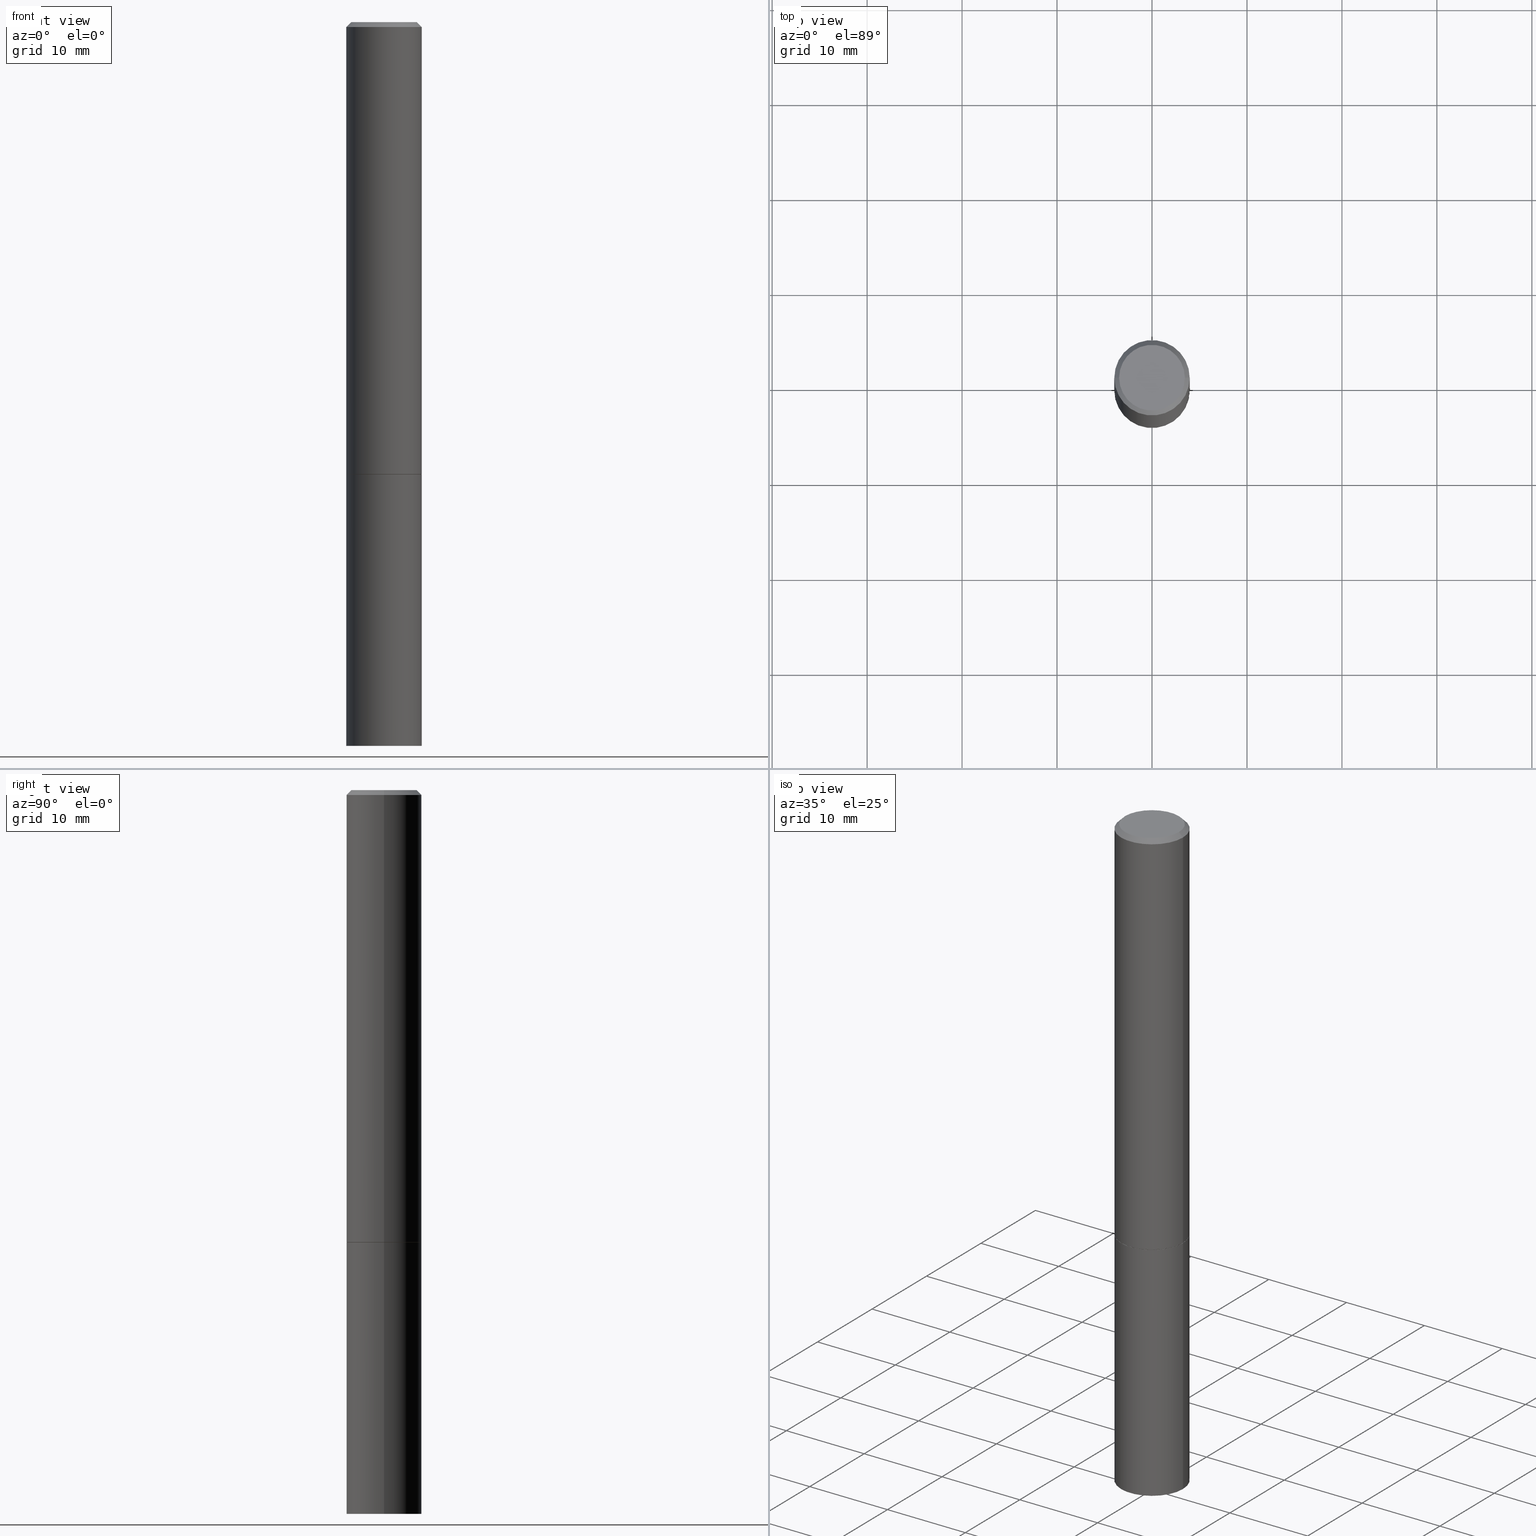
[diagram: canonical four-view strip — front | top / right | iso, engineering-drawing reading convention]
A machine part, canonical four-view strip (front | top / right | iso — engineering-drawing reading convention). The complete STEP part file that produces these views, byte-faithful:
ISO-10303-21;
HEADER;
FILE_DESCRIPTION (( 'STEP AP203' ),
    '1' );
FILE_NAME ('31740.STEP',
    '2023-03-21T20:28:49',
    ( '' ),
    ( '' ),
    'SwSTEP 2.0',
    'SolidWorks 2022',
    '' );
FILE_SCHEMA (( 'CONFIG_CONTROL_DESIGN' ));
ENDSEC;

DATA;
#1 = CARTESIAN_POINT ( 'NONE',  ( -0.1562499999999998057, 1.021258291611614692E-15, -0.02000000000000003511 ) ) ;
#2 = DIRECTION ( 'NONE',  ( -1.000000000000000000, 6.982962677686265922E-15, -4.876176775795935793E-29 ) ) ;
#3 = CIRCLE ( 'NONE', #162, 0.1562500000000000000 ) ;
#4 = DIRECTION ( 'NONE',  ( -2.445468806185136597E-29, 3.491481338843145583E-15, 1.000000000000000000 ) ) ;
#5 = DIRECTION ( 'NONE',  ( -2.445468806185136597E-29, 3.491481338843145583E-15, 1.000000000000000000 ) ) ;
#6 = CARTESIAN_POINT ( 'NONE',  ( 0.1552499999999999991, -7.630632466041692655E-15, -1.875000000000000000 ) ) ;
#7 = EDGE_CURVE ( 'NONE', #108, #316, #301, .T. ) ;
#8 = ORIENTED_EDGE ( 'NONE', *, *, #30, .T. ) ;
#9 = DIRECTION ( 'NONE',  ( 1.000000000000000000, -6.982962677686265922E-15, 4.876176775795935793E-29 ) ) ;
#10 = ORGANIZATION ( 'UNSPECIFIED', 'UNSPECIFIED', '' ) ;
#11 = ORIENTED_EDGE ( 'NONE', *, *, #110, .F. ) ;
#12 = PERSON_AND_ORGANIZATION_ROLE ( 'creator' ) ;
#13 = VERTEX_POINT ( 'NONE', #81 ) ;
#14 = CC_DESIGN_PERSON_AND_ORGANIZATION_ASSIGNMENT ( #116, #12, ( #311 ) ) ;
#15 = APPROVAL_STATUS ( 'not_yet_approved' ) ;
#16 = PERSON_AND_ORGANIZATION ( #211, #10 ) ;
#17 = CLOSED_SHELL ( 'NONE', ( #386, #299, #96, #206, #260 ) ) ;
#18 = EDGE_LOOP ( 'NONE', ( #364, #250, #261, #133 ) ) ;
#19 = DIRECTION ( 'NONE',  ( -2.445468806185136597E-29, 3.491481338843145583E-15, 1.000000000000000000 ) ) ;
#20 = ORIENTED_EDGE ( 'NONE', *, *, #236, .F. ) ;
#21 = CARTESIAN_POINT ( 'NONE',  ( 0.000000000000000000, 0.000000000000000000, 0.000000000000000000 ) ) ;
#22 = COORDINATED_UNIVERSAL_TIME_OFFSET ( 5, 0, .BEHIND. ) ;
#23 = CYLINDRICAL_SURFACE ( 'NONE', #61, 0.1562499999999999167 ) ;
#24 = APPROVAL_STATUS ( 'not_yet_approved' ) ;
#25 = EDGE_CURVE ( 'NONE', #130, #370, #47, .T. ) ;
#26 = DIRECTION ( 'NONE',  ( -2.445468806185136597E-29, 3.491481338843145583E-15, 1.000000000000000000 ) ) ;
#27 = FACE_OUTER_BOUND ( 'NONE', #18, .T. ) ;
#28 = AXIS2_PLACEMENT_3D ( 'NONE', #21, #314, #197 ) ;
#29 = CYLINDRICAL_SURFACE ( 'NONE', #242, 0.1562500000000000000 ) ;
#30 = EDGE_CURVE ( 'NONE', #370, #246, #3, .T. ) ;
#31 = CARTESIAN_POINT ( 'NONE',  ( 0.1562499999999999167, -1.091087918388478385E-15, 7.619026212181144772E-30 ) ) ;
#32 =( LENGTH_UNIT ( ) NAMED_UNIT ( * ) SI_UNIT ( $, .METRE. ) );
#33 = ORIENTED_EDGE ( 'NONE', *, *, #383, .T. ) ;
#34 = CIRCLE ( 'NONE', #223, 0.1562500000000000000 ) ;
#35 = DIRECTION ( 'NONE',  ( -2.438088387897960049E-29, 3.491481338843145188E-15, 1.000000000000000000 ) ) ;
#36 = EDGE_CURVE ( 'NONE', #304, #174, #89, .T. ) ;
#37 = CARTESIAN_POINT ( 'NONE',  ( 0.1362499999999998157, -1.038262645562516744E-15, 6.957025900226686667E-30 ) ) ;
#38 = ORIENTED_EDGE ( 'NONE', *, *, #120, .T. ) ;
#39 =( CONVERSION_BASED_UNIT ( 'INCH', #64 ) LENGTH_UNIT ( ) NAMED_UNIT ( #149 ) );
#40 = ADVANCED_FACE ( 'NONE', ( #214 ), #112, .T. ) ;
#41 = COORDINATED_UNIVERSAL_TIME_OFFSET ( 5, 0, .BEHIND. ) ;
#42 = VECTOR ( 'NONE', #72, 39.37007874015748143 ) ;
#43 = SECURITY_CLASSIFICATION_LEVEL ( 'unclassified' ) ;
#44 = DIRECTION ( 'NONE',  ( 1.000000000000000000, -6.982962677686265133E-15, 0.000000000000000000 ) ) ;
#45 = ORIENTED_EDGE ( 'NONE', *, *, #120, .F. ) ;
#46 = CALENDAR_DATE ( 2023, 21, 3 ) ;
#47 = LINE ( 'NONE', #341, #170 ) ;
#48 =( GEOMETRIC_REPRESENTATION_CONTEXT ( 3 ) GLOBAL_UNCERTAINTY_ASSIGNED_CONTEXT ( ( #318 ) ) GLOBAL_UNIT_ASSIGNED_CONTEXT ( ( #39, #247, #248 ) ) REPRESENTATION_CONTEXT ( 'NONE', 'WORKASPACE' ) );
#49 = VERTEX_POINT ( 'NONE', #153 ) ;
#50 = EDGE_CURVE ( 'NONE', #114, #366, #131, .T. ) ;
#51 = ORIENTED_EDGE ( 'NONE', *, *, #7, .F. ) ;
#52 = VERTEX_POINT ( 'NONE', #82 ) ;
#53 = DIRECTION ( 'NONE',  ( 0.000000000000000000, 0.000000000000000000, 1.000000000000000000 ) ) ;
#54 = CARTESIAN_POINT ( 'NONE',  ( 4.585254011597131119E-29, -6.546527510330898707E-15, -1.875000000000000000 ) ) ;
#55 = CONICAL_SURFACE ( 'NONE', #347, 0.1552499999999999991, 0.7853981633974141952 ) ;
#56 = AXIS2_PLACEMENT_3D ( 'NONE', #145, #267, #240 ) ;
#57 = APPROVAL_ROLE ( '' ) ;
#58 = FACE_OUTER_BOUND ( 'NONE', #190, .T. ) ;
#59 = LINE ( 'NONE', #63, #325 ) ;
#60 = DIRECTION ( 'NONE',  ( 1.000000000000000000, -6.982962677686265133E-15, 4.876176775795935232E-29 ) ) ;
#61 = AXIS2_PLACEMENT_3D ( 'NONE', #117, #180, #183 ) ;
#62 = APPROVAL_PERSON_ORGANIZATION ( #309, #343, #385 ) ;
#63 = CARTESIAN_POINT ( 'NONE',  ( -0.1552499999999999991, -5.443409913063343964E-15, -1.875000000000000000 ) ) ;
#64 = LENGTH_MEASURE_WITH_UNIT ( LENGTH_MEASURE( 0.02539999999999999897 ), #32 );
#65 = EDGE_LOOP ( 'NONE', ( #201, #38 ) ) ;
#66 = EDGE_CURVE ( 'NONE', #52, #13, #195, .T. ) ;
#67 = ORIENTED_EDGE ( 'NONE', *, *, #286, .T. ) ;
#68 = DIRECTION ( 'NONE',  ( -1.000000000000000000, 6.982962677686266711E-15, 0.000000000000000000 ) ) ;
#69 = CLOSED_SHELL ( 'NONE', ( #198, #151, #40, #359, #177, #249, #338, #239 ) ) ;
#70 = CIRCLE ( 'NONE', #139, 0.1552499999999999991 ) ;
#71 = MANIFOLD_SOLID_BREP ( 'Body-Move/Copy2[1]', #17 ) ;
#72 = DIRECTION ( 'NONE',  ( 0.7071067811865467956, -7.319954787623254468E-15, -0.7071067811865482389 ) ) ;
#73 = DIRECTION ( 'NONE',  ( 2.445468806185136597E-29, -3.491481338843145583E-15, -1.000000000000000000 ) ) ;
#74 = DIRECTION ( 'NONE',  ( -2.445468806185136597E-29, 3.491481338843145583E-15, 1.000000000000000000 ) ) ;
#75 = ORIENTED_EDGE ( 'NONE', *, *, #383, .F. ) ;
#76 = DATE_AND_TIME ( #288, #121 ) ;
#77 = AXIS2_PLACEMENT_3D ( 'NONE', #387, #26, #143 ) ;
#78 = CALENDAR_DATE ( 2023, 21, 3 ) ;
#79 = DIRECTION ( 'NONE',  ( 1.000000000000000000, -6.982962677686269077E-15, 0.000000000000000000 ) ) ;
#80 = PERSON_AND_ORGANIZATION_ROLE ( 'classification_officer' ) ;
#81 = CARTESIAN_POINT ( 'NONE',  ( -0.1562499999999998057, 1.021258291611614692E-15, -0.02000000000000003511 ) ) ;
#82 = CARTESIAN_POINT ( 'NONE',  ( 0.1562499999999998057, -1.141782438928663330E-15, -0.02000000000000003511 ) ) ;
#83 = ORIENTED_EDGE ( 'NONE', *, *, #236, .T. ) ;
#84 = ORIENTED_EDGE ( 'NONE', *, *, #188, .T. ) ;
#85 = APPROVAL ( #15, 'UNSPECIFIED' ) ;
#86 = FACE_OUTER_BOUND ( 'NONE', #256, .T. ) ;
#87 = PERSON_AND_ORGANIZATION_ROLE ( 'design_owner' ) ;
#88 = DIRECTION ( 'NONE',  ( 1.000000000000000000, -6.982962677686269077E-15, 0.000000000000000000 ) ) ;
#89 = CIRCLE ( 'NONE', #361, 0.1562500000000000000 ) ;
#90 = LOCAL_TIME ( 16, 28, 49.00000000000000000, #22 ) ;
#91 = CALENDAR_DATE ( 2023, 21, 3 ) ;
#92 = CARTESIAN_POINT ( 'NONE',  ( 4.585254011597131119E-29, -6.546527510330898707E-15, -1.875000000000000000 ) ) ;
#93 = DIRECTION ( 'NONE',  ( -2.445468806185136597E-29, 3.491481338843145583E-15, 1.000000000000000000 ) ) ;
#94 = CARTESIAN_POINT ( 'NONE',  ( 4.585254011597131119E-29, -6.546527510330898707E-15, -1.875000000000000000 ) ) ;
#95 = LOCAL_TIME ( 16, 28, 49.00000000000000000, #41 ) ;
#96 = ADVANCED_FACE ( 'NONE', ( #374 ), #252, .F. ) ;
#97 = FACE_OUTER_BOUND ( 'NONE', #159, .T. ) ;
#98 = EDGE_LOOP ( 'NONE', ( #282, #111 ) ) ;
#99 = PLANE ( 'NONE',  #333 ) ;
#100 = ORIENTED_EDGE ( 'NONE', *, *, #137, .T. ) ;
#101 = CIRCLE ( 'NONE', #77, 0.1362499999999998157 ) ;
#102 = LINE ( 'NONE', #31, #187 ) ;
#103 = ORIENTED_EDGE ( 'NONE', *, *, #25, .F. ) ;
#104 = EDGE_CURVE ( 'NONE', #336, #304, #147, .T. ) ;
#105 = ORIENTED_EDGE ( 'NONE', *, *, #104, .T. ) ;
#106 = AXIS2_PLACEMENT_3D ( 'NONE', #345, #227, #79 ) ;
#107 = AXIS2_PLACEMENT_3D ( 'NONE', #160, #329, #192 ) ;
#108 = VERTEX_POINT ( 'NONE', #209 ) ;
#109 = APPLICATION_PROTOCOL_DEFINITION ( 'international standard', 'config_control_design', 1994, #200 ) ;
#110 = EDGE_CURVE ( 'NONE', #370, #316, #324, .T. ) ;
#111 = ORIENTED_EDGE ( 'NONE', *, *, #141, .F. ) ;
#112 = CONICAL_SURFACE ( 'NONE', #208, 0.1562499999999998057, 0.7853981633974472798 ) ;
#113 = CONICAL_SURFACE ( 'NONE', #234, 751.2258538476485228, 1.518436449235072372 ) ;
#114 = VERTEX_POINT ( 'NONE', #205 ) ;
#115 = CARTESIAN_POINT ( 'NONE',  ( -0.1562500000000000000, 1.110223024625156540E-15, -7.685836078523291160E-30 ) ) ;
#116 = PERSON_AND_ORGANIZATION ( #211, #10 ) ;
#117 = CARTESIAN_POINT ( 'NONE',  ( 0.000000000000000000, 0.000000000000000000, 0.000000000000000000 ) ) ;
#118 = PERSON_AND_ORGANIZATION ( #211, #10 ) ;
#119 = FACE_OUTER_BOUND ( 'NONE', #136, .T. ) ;
#120 = EDGE_CURVE ( 'NONE', #316, #108, #354, .T. ) ;
#121 = LOCAL_TIME ( 16, 28, 49.00000000000000000, #175 ) ;
#122 = CARTESIAN_POINT ( 'NONE',  ( -0.1562500000000000000, -2.196209803259300198E-15, -1.874000000000000110 ) ) ;
#123 = APPROVAL ( #351, 'UNSPECIFIED' ) ;
#124 = CARTESIAN_POINT ( 'NONE',  ( 0.1552499999999999991, -7.630632466041692655E-15, -1.875000000000000000 ) ) ;
#125 = FACE_OUTER_BOUND ( 'NONE', #98, .T. ) ;
#126 = AXIS2_PLACEMENT_3D ( 'NONE', #317, #290, #60 ) ;
#127 = AXIS2_PLACEMENT_3D ( 'NONE', #264, #146, #350 ) ;
#128 = DIRECTION ( 'NONE',  ( 2.445468806185136597E-29, -3.491481338843145583E-15, -1.000000000000000000 ) ) ;
#129 = ORIENTED_EDGE ( 'NONE', *, *, #215, .T. ) ;
#130 = VERTEX_POINT ( 'NONE', #327 ) ;
#131 = CIRCLE ( 'NONE', #28, 0.1362499999999998157 ) ;
#132 = CARTESIAN_POINT ( 'NONE',  ( 4.890937612370281041E-31, -6.982962677686302702E-17, -0.02000000000000003511 ) ) ;
#133 = ORIENTED_EDGE ( 'NONE', *, *, #104, .F. ) ;
#134 = COORDINATED_UNIVERSAL_TIME_OFFSET ( 5, 0, .BEHIND. ) ;
#135 = ORIENTED_EDGE ( 'NONE', *, *, #188, .F. ) ;
#136 = EDGE_LOOP ( 'NONE', ( #257, #161, #105, #380 ) ) ;
#137 = EDGE_CURVE ( 'NONE', #246, #108, #322, .T. ) ;
#138 = PERSON_AND_ORGANIZATION ( #211, #10 ) ;
#139 = AXIS2_PLACEMENT_3D ( 'NONE', #158, #74, #222 ) ;
#140 = ORIENTED_EDGE ( 'NONE', *, *, #286, .F. ) ;
#141 = EDGE_CURVE ( 'NONE', #49, #336, #169, .T. ) ;
#142 = ORIENTED_EDGE ( 'NONE', *, *, #215, .F. ) ;
#143 = DIRECTION ( 'NONE',  ( 1.000000000000000000, -6.982962677686266711E-15, 4.876176775795935232E-29 ) ) ;
#144 = APPROVAL_ROLE ( '' ) ;
#145 = CARTESIAN_POINT ( 'NONE',  ( 9.514286648347523799E-16, 0.1362499999999998157, -4.757143324173778663E-16 ) ) ;
#146 = DIRECTION ( 'NONE',  ( -2.445468806185136597E-29, 3.491481338843145583E-15, 1.000000000000000000 ) ) ;
#147 = LINE ( 'NONE', #124, #346 ) ;
#148 = DIRECTION ( 'NONE',  ( 2.445468806185136597E-29, -3.491481338843145583E-15, -1.000000000000000000 ) ) ;
#149 = DIMENSIONAL_EXPONENTS ( 1.000000000000000000, 0.000000000000000000, 0.000000000000000000, 0.000000000000000000, 0.000000000000000000, 0.000000000000000000, 0.000000000000000000 ) ;
#150 = CARTESIAN_POINT ( 'NONE',  ( 1.035946806263134394E-27, -1.479057484991719008E-13, -42.36189002464450937 ) ) ;
#151 = ADVANCED_FACE ( 'NONE', ( #390 ), #241, .T. ) ;
#152 = FACE_OUTER_BOUND ( 'NONE', #235, .T. ) ;
#153 = CARTESIAN_POINT ( 'NONE',  ( -0.1552499999999999991, -5.438111458715121561E-15, -1.875000000000000000 ) ) ;
#154 = VECTOR ( 'NONE', #254, 39.37007874015748143 ) ;
#155 = APPLICATION_CONTEXT ( 'configuration controlled 3d designs of mechanical parts and assemblies' ) ;
#156 = DIRECTION ( 'NONE',  ( -1.000000000000000000, 6.982962677686266711E-15, 0.000000000000000000 ) ) ;
#157 = EDGE_LOOP ( 'NONE', ( #140, #204, #129, #83 ) ) ;
#158 = CARTESIAN_POINT ( 'NONE',  ( 4.585254011597131119E-29, -6.546527510330898707E-15, -1.875000000000000000 ) ) ;
#159 = EDGE_LOOP ( 'NONE', ( #33, #310, #51, #194 ) ) ;
#160 = CARTESIAN_POINT ( 'NONE',  ( 0.000000000000000000, 0.000000000000000000, 0.000000000000000000 ) ) ;
#161 = ORIENTED_EDGE ( 'NONE', *, *, #141, .T. ) ;
#162 = AXIS2_PLACEMENT_3D ( 'NONE', #230, #19, #172 ) ;
#163 = AXIS2_PLACEMENT_3D ( 'NONE', #224, #365, #278 ) ;
#164 = PERSON_AND_ORGANIZATION ( #211, #10 ) ;
#165 = PERSON_AND_ORGANIZATION_ROLE ( 'creator' ) ;
#166 = ORIENTED_EDGE ( 'NONE', *, *, #225, .F. ) ;
#167 = CALENDAR_DATE ( 2023, 21, 3 ) ;
#168 = EDGE_LOOP ( 'NONE', ( #372, #368, #221, #186 ) ) ;
#169 = CIRCLE ( 'NONE', #262, 0.1552499999999999991 ) ;
#170 = VECTOR ( 'NONE', #379, 39.37007874015748854 ) ;
#171 = CC_DESIGN_APPROVAL ( #123, ( #228 ) ) ;
#172 = DIRECTION ( 'NONE',  ( 1.000000000000000000, -6.982962677686262766E-15, 0.000000000000000000 ) ) ;
#173 = EDGE_LOOP ( 'NONE', ( #166, #67, #315, #142 ) ) ;
#174 = VERTEX_POINT ( 'NONE', #122 ) ;
#175 = COORDINATED_UNIVERSAL_TIME_OFFSET ( 5, 0, .BEHIND. ) ;
#176 = PLANE ( 'NONE',  #56 ) ;
#177 = ADVANCED_FACE ( 'NONE', ( #58 ), #23, .T. ) ;
#178 = CARTESIAN_POINT ( 'NONE',  ( 1.035946806263134394E-27, -1.479057484991719008E-13, -42.36189002464450937 ) ) ;
#179 = CARTESIAN_POINT ( 'NONE',  ( 4.585254011597131119E-29, -6.546527510330898707E-15, -1.875000000000000000 ) ) ;
#180 = DIRECTION ( 'NONE',  ( -2.445468806185136597E-29, 3.491481338843145583E-15, 1.000000000000000000 ) ) ;
#181 = VECTOR ( 'NONE', #269, 39.37007874015748143 ) ;
#182 = AXIS2_PLACEMENT_3D ( 'NONE', #291, #53, #353 ) ;
#183 = DIRECTION ( 'NONE',  ( 1.000000000000000000, -6.982962677686265133E-15, 4.876176775795935232E-29 ) ) ;
#184 = CARTESIAN_POINT ( 'NONE',  ( 0.1562499999999998057, -1.141782438928663330E-15, -0.02000000000000003511 ) ) ;
#185 = DIRECTION ( 'NONE',  ( -2.445468806185136877E-29, 3.491481338843145188E-15, 1.000000000000000000 ) ) ;
#186 = ORIENTED_EDGE ( 'NONE', *, *, #295, .F. ) ;
#187 = VECTOR ( 'NONE', #185, 39.37007874015748143 ) ;
#188 = EDGE_CURVE ( 'NONE', #130, #246, #293, .T. ) ;
#189 = FACE_OUTER_BOUND ( 'NONE', #157, .T. ) ;
#190 = EDGE_LOOP ( 'NONE', ( #279, #275, #349, #20 ) ) ;
#191 = EDGE_CURVE ( 'NONE', #49, #174, #59, .T. ) ;
#192 = DIRECTION ( 'NONE',  ( 1.000000000000000000, -6.982962677686266711E-15, 4.876176775795936353E-29 ) ) ;
#193 = CARTESIAN_POINT ( 'NONE',  ( 1.091087918388524927E-15, 0.1562499999999934497, -1.875000000000000666 ) ) ;
#194 = ORIENTED_EDGE ( 'NONE', *, *, #137, .F. ) ;
#195 = CIRCLE ( 'NONE', #332, 0.1562499999999998057 ) ;
#196 = APPROVAL_DATE_TIME ( #76, #85 ) ;
#197 = DIRECTION ( 'NONE',  ( 1.000000000000000000, -6.982962677686266711E-15, 4.876176775795935232E-29 ) ) ;
#198 = ADVANCED_FACE ( 'NONE', ( #27 ), #55, .T. ) ;
#199 = COORDINATED_UNIVERSAL_TIME_OFFSET ( 5, 0, .BEHIND. ) ;
#200 = APPLICATION_CONTEXT ( 'configuration controlled 3d designs of mechanical parts and assemblies' ) ;
#201 = ORIENTED_EDGE ( 'NONE', *, *, #7, .T. ) ;
#202 = DIRECTION ( 'NONE',  ( -2.445468806185136597E-29, 3.491481338843145583E-15, 1.000000000000000000 ) ) ;
#203 = CONICAL_SURFACE ( 'NONE', #274, 0.1562499999999998057, 0.7853981633974472798 ) ;
#204 = ORIENTED_EDGE ( 'NONE', *, *, #50, .F. ) ;
#205 = CARTESIAN_POINT ( 'NONE',  ( -0.1362499999999998157, 9.863434782231836346E-16, -6.775751096333130074E-30 ) ) ;
#206 = ADVANCED_FACE ( 'NONE', ( #296 ), #29, .T. ) ;
#207 = DATE_AND_TIME ( #91, #90 ) ;
#208 = AXIS2_PLACEMENT_3D ( 'NONE', #356, #219, #68 ) ;
#209 = CARTESIAN_POINT ( 'NONE',  ( 0.1562500000000000000, -7.637615428719378669E-15, -1.875000000000000000 ) ) ;
#210 = VECTOR ( 'NONE', #297, 39.37007874015748143 ) ;
#211 = PERSON ( 'UNSPECIFIED', 'UNSPECIFIED', 'UNSPECIFIED', ('UNSPECIFIED'), ('UNSPECIFIED'), ('UNSPECIFIED') ) ;
#212 = DIRECTION ( 'NONE',  ( -1.000000000000000000, 6.982962677686266711E-15, 0.000000000000000000 ) ) ;
#213 = DIRECTION ( 'NONE',  ( -2.445468806185136597E-29, 3.491481338843145583E-15, 1.000000000000000000 ) ) ;
#214 = FACE_OUTER_BOUND ( 'NONE', #173, .T. ) ;
#215 = EDGE_CURVE ( 'NONE', #114, #13, #268, .T. ) ;
#216 = CARTESIAN_POINT ( 'NONE',  ( 0.1562500000000000000, -1.091087918388479174E-15, 7.619026212181150377E-30 ) ) ;
#217 = CIRCLE ( 'NONE', #127, 0.1562499999999998057 ) ;
#218 = FACE_OUTER_BOUND ( 'NONE', #65, .T. ) ;
#219 = DIRECTION ( 'NONE',  ( 2.445468806185136597E-29, -3.491481338843145583E-15, -1.000000000000000000 ) ) ;
#220 = CARTESIAN_POINT ( 'NONE',  ( 7.336406418555409790E-29, -1.047444401652943635E-14, -3.000000000000000444 ) ) ;
#221 = ORIENTED_EDGE ( 'NONE', *, *, #66, .F. ) ;
#222 = DIRECTION ( 'NONE',  ( 1.000000000000000000, -6.982962677686268288E-15, 0.000000000000000000 ) ) ;
#223 = AXIS2_PLACEMENT_3D ( 'NONE', #220, #5, #363 ) ;
#224 = CARTESIAN_POINT ( 'NONE',  ( 4.582808542790945516E-29, -6.543036028992054911E-15, -1.874000000000000110 ) ) ;
#225 = EDGE_CURVE ( 'NONE', #366, #114, #101, .T. ) ;
#226 = PERSON_AND_ORGANIZATION_ROLE ( 'design_supplier' ) ;
#227 = DIRECTION ( 'NONE',  ( -2.445468806185136597E-29, 3.491481338843145583E-15, 1.000000000000000000 ) ) ;
#228 = SECURITY_CLASSIFICATION ( '', '', #43 ) ;
#229 = DATE_AND_TIME ( #78, #95 ) ;
#230 = CARTESIAN_POINT ( 'NONE',  ( 7.336406418555409790E-29, -1.047444401652943635E-14, -3.000000000000000444 ) ) ;
#231 = PRODUCT ( '31740', '31740', '', ( #342 ) ) ;
#232 = ORIENTED_EDGE ( 'NONE', *, *, #30, .F. ) ;
#233 = CC_DESIGN_DATE_AND_TIME_ASSIGNMENT ( #207, #377, ( #311 ) ) ;
#234 = AXIS2_PLACEMENT_3D ( 'NONE', #150, #128, #156 ) ;
#235 = EDGE_LOOP ( 'NONE', ( #103, #84, #232 ) ) ;
#236 = EDGE_CURVE ( 'NONE', #13, #52, #217, .T. ) ;
#237 = DIRECTION ( 'NONE',  ( -2.445468806185136597E-29, 3.491481338843145583E-15, 1.000000000000000000 ) ) ;
#238 = DATE_TIME_ROLE ( 'classification_date' ) ;
#239 = ADVANCED_FACE ( 'NONE', ( #86 ), #176, .F. ) ;
#240 = DIRECTION ( 'NONE',  ( -1.000000000000000000, 6.982962677686265922E-15, -4.876176775795935793E-29 ) ) ;
#241 = CYLINDRICAL_SURFACE ( 'NONE', #126, 0.1562499999999999167 ) ;
#242 = AXIS2_PLACEMENT_3D ( 'NONE', #270, #237, #292 ) ;
#243 = DIRECTION ( 'NONE',  ( 0.9986295347545742773, -7.033825938272001856E-15, -0.05233595624293820026 ) ) ;
#244 = DIRECTION ( 'NONE',  ( 0.7071067811865232589, -2.468850131082003836E-15, 0.7071067811865715536 ) ) ;
#245 = PLANE ( 'NONE',  #289 ) ;
#246 = VERTEX_POINT ( 'NONE', #352 ) ;
#247 =( NAMED_UNIT ( * ) PLANE_ANGLE_UNIT ( ) SI_UNIT ( $, .RADIAN. ) );
#248 =( NAMED_UNIT ( * ) SI_UNIT ( $, .STERADIAN. ) SOLID_ANGLE_UNIT ( ) );
#249 = ADVANCED_FACE ( 'NONE', ( #119 ), #340, .T. ) ;
#250 = ORIENTED_EDGE ( 'NONE', *, *, #191, .T. ) ;
#251 = CARTESIAN_POINT ( 'NONE',  ( -0.1562499999999999167, 1.110223024625155949E-15, -7.685836078523285555E-30 ) ) ;
#252 = CONICAL_SURFACE ( 'NONE', #339, 751.2258538476485228, 1.518436449235072372 ) ;
#253 = PRODUCT_DEFINITION_SHAPE ( 'NONE', 'NONE',  #311 ) ;
#254 = DIRECTION ( 'NONE',  ( -2.445468806185136877E-29, 3.491481338843145188E-15, 1.000000000000000000 ) ) ;
#255 = APPROVAL_DATE_TIME ( #229, #343 ) ;
#256 = EDGE_LOOP ( 'NONE', ( #376, #277 ) ) ;
#257 = ORIENTED_EDGE ( 'NONE', *, *, #191, .F. ) ;
#258 = APPROVAL_PERSON_ORGANIZATION ( #138, #85, #144 ) ;
#259 = EDGE_LOOP ( 'NONE', ( #11, #8, #100, #45 ) ) ;
#260 = ADVANCED_FACE ( 'NONE', ( #218 ), #99, .F. ) ;
#261 = ORIENTED_EDGE ( 'NONE', *, *, #36, .F. ) ;
#262 = AXIS2_PLACEMENT_3D ( 'NONE', #179, #213, #320 ) ;
#263 = CC_DESIGN_APPROVAL ( #85, ( #311 ) ) ;
#264 = CARTESIAN_POINT ( 'NONE',  ( 4.890937612370281041E-31, -6.982962677686302702E-17, -0.02000000000000003511 ) ) ;
#265 = PERSON_AND_ORGANIZATION ( #211, #10 ) ;
#266 = PRODUCT_RELATED_PRODUCT_CATEGORY ( 'detail', '', ( #231 ) ) ;
#267 = DIRECTION ( 'NONE',  ( 2.438088387897960049E-29, -3.491481338843145188E-15, -1.000000000000000000 ) ) ;
#268 = LINE ( 'NONE', #1, #210 ) ;
#269 = DIRECTION ( 'NONE',  ( -2.445468806185136877E-29, 3.491481338843145188E-15, 1.000000000000000000 ) ) ;
#270 = CARTESIAN_POINT ( 'NONE',  ( 0.000000000000000000, 0.000000000000000000, 0.000000000000000000 ) ) ;
#271 = CARTESIAN_POINT ( 'NONE',  ( 0.1562500000000000000, -7.634123947380534085E-15, -1.874000000000000110 ) ) ;
#272 = EDGE_CURVE ( 'NONE', #336, #49, #70, .T. ) ;
#273 = DIRECTION ( 'NONE',  ( -1.000000000000000000, 6.982962677686266711E-15, 0.000000000000000000 ) ) ;
#274 = AXIS2_PLACEMENT_3D ( 'NONE', #132, #73, #273 ) ;
#275 = ORIENTED_EDGE ( 'NONE', *, *, #298, .T. ) ;
#276 = CARTESIAN_POINT ( 'NONE',  ( 4.585254011597131119E-29, -6.546527510330898707E-15, -1.875000000000000000 ) ) ;
#277 = ORIENTED_EDGE ( 'NONE', *, *, #225, .T. ) ;
#278 = DIRECTION ( 'NONE',  ( 1.000000000000000000, -6.982962677686269077E-15, 0.000000000000000000 ) ) ;
#279 = ORIENTED_EDGE ( 'NONE', *, *, #287, .F. ) ;
#280 = APPROVAL_PERSON_ORGANIZATION ( #337, #123, #57 ) ;
#281 = SHAPE_DEFINITION_REPRESENTATION ( #253, #378 ) ;
#282 = ORIENTED_EDGE ( 'NONE', *, *, #272, .F. ) ;
#283 = AXIS2_PLACEMENT_3D ( 'NONE', #94, #93, #88 ) ;
#284 = CC_DESIGN_DATE_AND_TIME_ASSIGNMENT ( #382, #238, ( #228 ) ) ;
#285 = CARTESIAN_POINT ( 'NONE',  ( 4.582808542790945516E-29, -6.543036028992054911E-15, -1.874000000000000110 ) ) ;
#286 = EDGE_CURVE ( 'NONE', #366, #52, #331, .T. ) ;
#287 = EDGE_CURVE ( 'NONE', #174, #13, #300, .T. ) ;
#288 = CALENDAR_DATE ( 2023, 21, 3 ) ;
#289 = AXIS2_PLACEMENT_3D ( 'NONE', #276, #35, #9 ) ;
#290 = DIRECTION ( 'NONE',  ( -2.445468806185136597E-29, 3.491481338843145583E-15, 1.000000000000000000 ) ) ;
#291 = CARTESIAN_POINT ( 'NONE',  ( 0.000000000000000000, 0.000000000000000000, 0.000000000000000000 ) ) ;
#292 = DIRECTION ( 'NONE',  ( 1.000000000000000000, -6.982962677686266711E-15, 4.876176775795936353E-29 ) ) ;
#293 = LINE ( 'NONE', #357, #388 ) ;
#294 = CC_DESIGN_APPROVAL ( #343, ( #305 ) ) ;
#295 = EDGE_CURVE ( 'NONE', #304, #52, #102, .T. ) ;
#296 = FACE_OUTER_BOUND ( 'NONE', #259, .T. ) ;
#297 = DIRECTION ( 'NONE',  ( -0.7071067811865467956, 2.468850131082249172E-15, -0.7071067811865482389 ) ) ;
#298 = EDGE_CURVE ( 'NONE', #174, #304, #362, .T. ) ;
#299 = ADVANCED_FACE ( 'NONE', ( #152 ), #113, .F. ) ;
#300 = LINE ( 'NONE', #251, #154 ) ;
#301 = CIRCLE ( 'NONE', #106, 0.1562500000000000000 ) ;
#302 = CC_DESIGN_SECURITY_CLASSIFICATION ( #228, ( #305 ) ) ;
#303 = CYLINDRICAL_SURFACE ( 'NONE', #107, 0.1562500000000000000 ) ;
#304 = VERTEX_POINT ( 'NONE', #271 ) ;
#305 = PRODUCT_DEFINITION_FORMATION_WITH_SPECIFIED_SOURCE ( 'ANY', '', #231, .NOT_KNOWN. ) ;
#306 = DATE_AND_TIME ( #167, #326 ) ;
#307 = DIRECTION ( 'NONE',  ( -2.445468806185136597E-29, 3.491481338843145583E-15, 1.000000000000000000 ) ) ;
#308 = ORIENTED_EDGE ( 'NONE', *, *, #25, .T. ) ;
#309 = PERSON_AND_ORGANIZATION ( #211, #10 ) ;
#310 = ORIENTED_EDGE ( 'NONE', *, *, #110, .T. ) ;
#311 = PRODUCT_DEFINITION ( 'UNKNOWN', '', #305, #358 ) ;
#312 = DIRECTION ( 'NONE',  ( 1.000000000000000000, -6.982962677686269077E-15, 0.000000000000000000 ) ) ;
#313 = LOCAL_TIME ( 16, 28, 49.00000000000000000, #199 ) ;
#314 = DIRECTION ( 'NONE',  ( -2.445468806185136597E-29, 3.491481338843145583E-15, 1.000000000000000000 ) ) ;
#315 = ORIENTED_EDGE ( 'NONE', *, *, #66, .T. ) ;
#316 = VERTEX_POINT ( 'NONE', #335 ) ;
#317 = CARTESIAN_POINT ( 'NONE',  ( 0.000000000000000000, 0.000000000000000000, 0.000000000000000000 ) ) ;
#318 = UNCERTAINTY_MEASURE_WITH_UNIT (LENGTH_MEASURE( 1.000000000000000082E-05 ), #39, 'distance_accuracy_value', 'NONE');
#319 = APPLICATION_PROTOCOL_DEFINITION ( 'international standard', 'config_control_design', 1994, #155 ) ;
#320 = DIRECTION ( 'NONE',  ( 1.000000000000000000, -6.982962677686268288E-15, 0.000000000000000000 ) ) ;
#321 = MANIFOLD_SOLID_BREP ( 'Body-Move/Copy2[2]', #69 ) ;
#322 = LINE ( 'NONE', #216, #389 ) ;
#323 = CC_DESIGN_PERSON_AND_ORGANIZATION_ASSIGNMENT ( #16, #80, ( #228 ) ) ;
#324 = LINE ( 'NONE', #115, #181 ) ;
#325 = VECTOR ( 'NONE', #355, 39.37007874015748854 ) ;
#326 = LOCAL_TIME ( 16, 28, 49.00000000000000000, #134 ) ;
#327 = CARTESIAN_POINT ( 'NONE',  ( 7.316272767806348323E-29, -1.044600850753255805E-14, -2.991811284487026157 ) ) ;
#328 = CC_DESIGN_PERSON_AND_ORGANIZATION_ASSIGNMENT ( #265, #165, ( #305 ) ) ;
#329 = DIRECTION ( 'NONE',  ( -2.445468806185136597E-29, 3.491481338843145583E-15, 1.000000000000000000 ) ) ;
#330 = EDGE_LOOP ( 'NONE', ( #135, #308, #75 ) ) ;
#331 = LINE ( 'NONE', #184, #42 ) ;
#332 = AXIS2_PLACEMENT_3D ( 'NONE', #371, #307, #44 ) ;
#333 = AXIS2_PLACEMENT_3D ( 'NONE', #193, #367, #2 ) ;
#334 = DIRECTION ( 'NONE',  ( 1.000000000000000000, -6.982962677686268288E-15, 0.000000000000000000 ) ) ;
#335 = CARTESIAN_POINT ( 'NONE',  ( -0.1562500000000000000, -7.400262738805011779E-15, -1.875000000000000000 ) ) ;
#336 = VERTEX_POINT ( 'NONE', #6 ) ;
#337 = PERSON_AND_ORGANIZATION ( #211, #10 ) ;
#338 = ADVANCED_FACE ( 'NONE', ( #125 ), #245, .F. ) ;
#339 = AXIS2_PLACEMENT_3D ( 'NONE', #178, #148, #212 ) ;
#340 = CONICAL_SURFACE ( 'NONE', #375, 0.1552499999999999991, 0.7853981633974141952 ) ;
#341 = CARTESIAN_POINT ( 'NONE',  ( -1.552384056911224348E-19, -1.044585326912679342E-14, -2.991811284487026157 ) ) ;
#342 = MECHANICAL_CONTEXT ( 'NONE', #155, 'mechanical' ) ;
#343 = APPROVAL ( #24, 'UNSPECIFIED' ) ;
#344 = APPROVAL_DATE_TIME ( #306, #123 ) ;
#345 = CARTESIAN_POINT ( 'NONE',  ( 4.585254011597131119E-29, -6.546527510330898707E-15, -1.875000000000000000 ) ) ;
#346 = VECTOR ( 'NONE', #244, 39.37007874015748854 ) ;
#347 = AXIS2_PLACEMENT_3D ( 'NONE', #54, #360, #384 ) ;
#348 = CC_DESIGN_PERSON_AND_ORGANIZATION_ASSIGNMENT ( #164, #226, ( #305 ) ) ;
#349 = ORIENTED_EDGE ( 'NONE', *, *, #295, .T. ) ;
#350 = DIRECTION ( 'NONE',  ( 1.000000000000000000, -6.982962677686265133E-15, 0.000000000000000000 ) ) ;
#351 = APPROVAL_STATUS ( 'not_yet_approved' ) ;
#352 = CARTESIAN_POINT ( 'NONE',  ( 0.1562499999999997224, -1.154639682868123816E-14, -3.000000000000000444 ) ) ;
#353 = DIRECTION ( 'NONE',  ( 1.000000000000000000, 0.000000000000000000, 0.000000000000000000 ) ) ;
#354 = CIRCLE ( 'NONE', #283, 0.1562500000000000000 ) ;
#355 = DIRECTION ( 'NONE',  ( -0.7071067811865232589, 7.493145998870265808E-15, 0.7071067811865715536 ) ) ;
#356 = CARTESIAN_POINT ( 'NONE',  ( 4.890937612370281041E-31, -6.982962677686302702E-17, -0.02000000000000003511 ) ) ;
#357 = CARTESIAN_POINT ( 'NONE',  ( 1.552384058374500420E-19, -1.044585326912679342E-14, -2.991811284487026157 ) ) ;
#358 = DESIGN_CONTEXT ( 'detailed design', #200, 'design' ) ;
#359 = ADVANCED_FACE ( 'NONE', ( #189 ), #203, .T. ) ;
#360 = DIRECTION ( 'NONE',  ( -2.445468806185136597E-29, 3.491481338843145583E-15, 1.000000000000000000 ) ) ;
#361 = AXIS2_PLACEMENT_3D ( 'NONE', #285, #202, #312 ) ;
#362 = CIRCLE ( 'NONE', #163, 0.1562500000000000000 ) ;
#363 = DIRECTION ( 'NONE',  ( 1.000000000000000000, -6.982962677686262766E-15, 0.000000000000000000 ) ) ;
#364 = ORIENTED_EDGE ( 'NONE', *, *, #272, .T. ) ;
#365 = DIRECTION ( 'NONE',  ( -2.445468806185136597E-29, 3.491481338843145583E-15, 1.000000000000000000 ) ) ;
#366 = VERTEX_POINT ( 'NONE', #37 ) ;
#367 = DIRECTION ( 'NONE',  ( 2.438088387897960049E-29, -3.491481338843145188E-15, -1.000000000000000000 ) ) ;
#368 = ORIENTED_EDGE ( 'NONE', *, *, #287, .T. ) ;
#369 = CARTESIAN_POINT ( 'NONE',  ( -0.1562499999999997224, -9.383356098140961124E-15, -3.000000000000000444 ) ) ;
#370 = VERTEX_POINT ( 'NONE', #369 ) ;
#371 = CARTESIAN_POINT ( 'NONE',  ( 4.890937612370281041E-31, -6.982962677686302702E-17, -0.02000000000000003511 ) ) ;
#372 = ORIENTED_EDGE ( 'NONE', *, *, #36, .T. ) ;
#373 = CC_DESIGN_PERSON_AND_ORGANIZATION_ASSIGNMENT ( #118, #87, ( #231 ) ) ;
#374 = FACE_OUTER_BOUND ( 'NONE', #330, .T. ) ;
#375 = AXIS2_PLACEMENT_3D ( 'NONE', #92, #4, #334 ) ;
#376 = ORIENTED_EDGE ( 'NONE', *, *, #50, .T. ) ;
#377 = DATE_TIME_ROLE ( 'creation_date' ) ;
#378 = ADVANCED_BREP_SHAPE_REPRESENTATION ( '31740', ( #71, #321, #182 ), #48 ) ;
#379 = DIRECTION ( 'NONE',  ( -0.9986295347545742773, 6.790662755453662155E-15, -0.05233595624293820026 ) ) ;
#380 = ORIENTED_EDGE ( 'NONE', *, *, #298, .F. ) ;
#381 = DIRECTION ( 'NONE',  ( -2.445468806185136877E-29, 3.491481338843145188E-15, 1.000000000000000000 ) ) ;
#382 = DATE_AND_TIME ( #46, #313 ) ;
#383 = EDGE_CURVE ( 'NONE', #246, #370, #34, .T. ) ;
#384 = DIRECTION ( 'NONE',  ( 1.000000000000000000, -6.982962677686268288E-15, 0.000000000000000000 ) ) ;
#385 = APPROVAL_ROLE ( '' ) ;
#386 = ADVANCED_FACE ( 'NONE', ( #97 ), #303, .T. ) ;
#387 = CARTESIAN_POINT ( 'NONE',  ( 0.000000000000000000, 0.000000000000000000, 0.000000000000000000 ) ) ;
#388 = VECTOR ( 'NONE', #243, 39.37007874015748854 ) ;
#389 = VECTOR ( 'NONE', #381, 39.37007874015748143 ) ;
#390 = FACE_OUTER_BOUND ( 'NONE', #168, .T. ) ;
ENDSEC;
END-ISO-10303-21;
